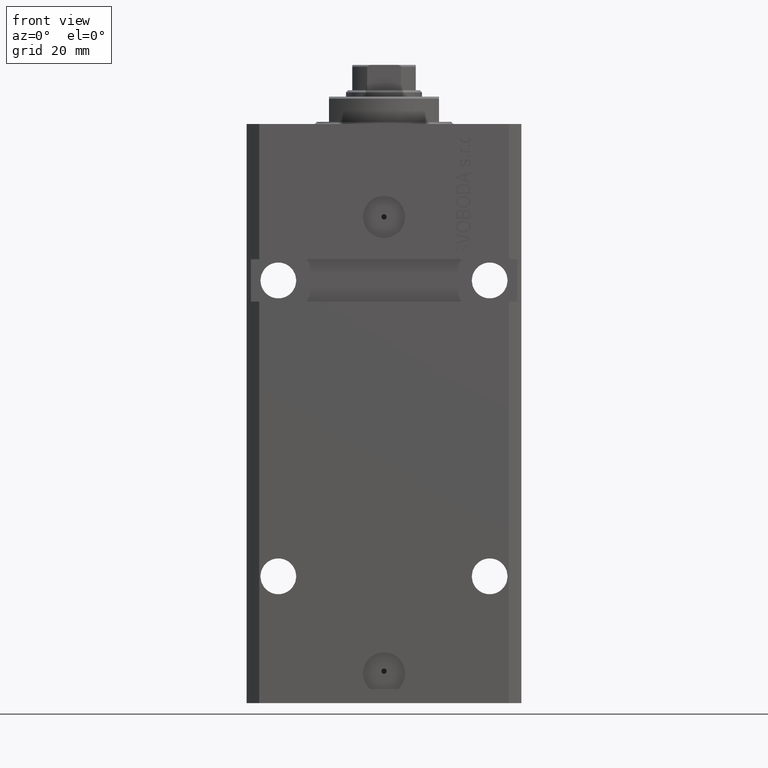
[diagram: clean part render]
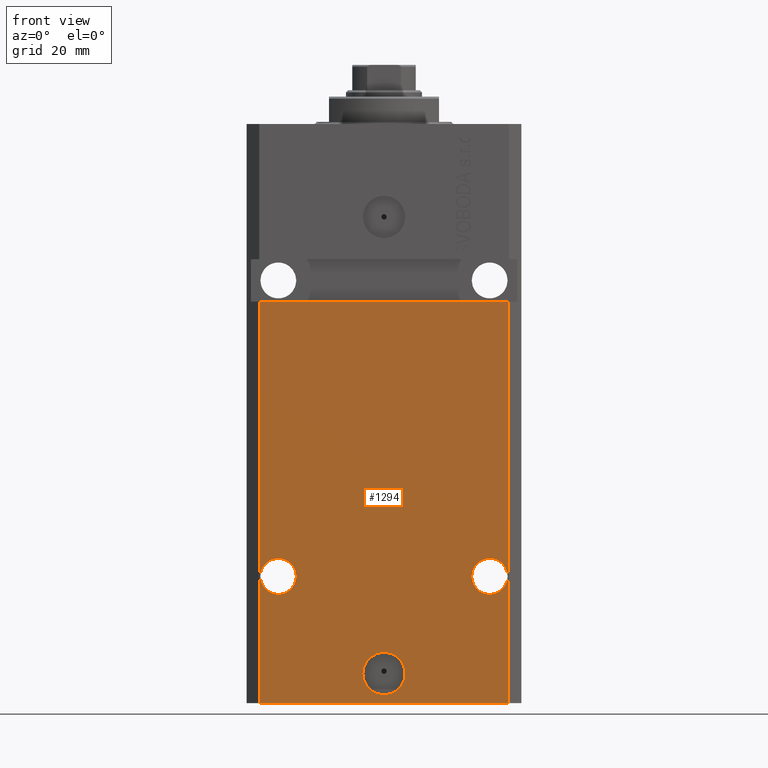
[diagram: same view with one face highlighted and labeled with its STEP entity id]
A machine part, front view. The second image highlights one B-rep face of the part: STEP entity #1294.
In plain terms, the highlighted planar face has unit normal (0, -1, 0).
Its self-contained STEP definition (entity closure, byte-faithful):
#563 = CARTESIAN_POINT ( 'NONE',  ( -29.49999999999650413, -22.49999999999949907, -137.0000000000000000 ) ) ;
#709 = ORIENTED_EDGE ( 'NONE', *, *, #30894, .F. ) ;
#772 = AXIS2_PLACEMENT_3D ( 'NONE', #40109, #24463, #17959 ) ;
#794 = CARTESIAN_POINT ( 'NONE',  ( 29.49999999999650058, -22.49999999999949196, -41.99999999999998579 ) ) ;
#878 = EDGE_LOOP ( 'NONE', ( #13685, #11842 ) ) ;
#1294 = ADVANCED_FACE ( 'NONE', ( #38392, #5846, #20100, #12629 ), #20328, .T. ) ;
#1547 = CARTESIAN_POINT ( 'NONE',  ( -5.000000000000003553, -22.49999999999949551, -130.0000000000000000 ) ) ;
#1657 = DIRECTION ( 'NONE',  ( 1.176083712526788232E-16, -1.000000000000000000, 0.000000000000000000 ) ) ;
#1939 = VECTOR ( 'NONE', #4439, 1000.000000000000000 ) ;
#1985 = EDGE_CURVE ( 'NONE', #36672, #47180, #29821, .T. ) ;
#3663 = VERTEX_POINT ( 'NONE', #15588 ) ;
#3960 = LINE ( 'NONE', #563, #1939 ) ;
#4177 = CARTESIAN_POINT ( 'NONE',  ( 20.75000000001096012, -22.49999999999949196, -107.0000000000000000 ) ) ;
#4439 = DIRECTION ( 'NONE',  ( 0.000000000000000000, 0.000000000000000000, 1.000000000000000000 ) ) ;
#4982 = CARTESIAN_POINT ( 'NONE',  ( 5.000000000000008882, -22.49999999999949551, -130.0000000000000000 ) ) ;
#5269 = CIRCLE ( 'NONE', #43735, 4.249999999989050536 ) ;
#5281 = CARTESIAN_POINT ( 'NONE',  ( 25.00000000000001066, -22.49999999999949196, -107.0000000000000000 ) ) ;
#5389 = CIRCLE ( 'NONE', #772, 5.000000000000006217 ) ;
#5846 = FACE_BOUND ( 'NONE', #11536, .T. ) ;
#6066 = EDGE_CURVE ( 'NONE', #31762, #12557, #16029, .T. ) ;
#6820 = VERTEX_POINT ( 'NONE', #7582 ) ;
#6883 = EDGE_CURVE ( 'NONE', #3663, #24716, #5269, .T. ) ;
#7391 = CARTESIAN_POINT ( 'NONE',  ( -32.49999999999650413, -22.49999999999949907, -41.99999999999999289 ) ) ;
#7582 = CARTESIAN_POINT ( 'NONE',  ( 29.49999999999650413, -22.49999999999949196, -137.0000000000000000 ) ) ;
#7701 = CARTESIAN_POINT ( 'NONE',  ( -29.49999999999650413, -22.49999999999949907, -41.99999999999999289 ) ) ;
#8059 = EDGE_CURVE ( 'NONE', #43306, #19289, #14531, .T. ) ;
#8542 = DIRECTION ( 'NONE',  ( 1.000000000000000000, 0.000000000000000000, 0.000000000000000000 ) ) ;
#8730 = DIRECTION ( 'NONE',  ( -1.000000000000000000, 0.000000000000000000, 0.000000000000000000 ) ) ;
#9423 = DIRECTION ( 'NONE',  ( 1.176083712526788232E-16, -1.000000000000000000, 0.000000000000000000 ) ) ;
#10056 = VERTEX_POINT ( 'NONE', #42397 ) ;
#10617 = ORIENTED_EDGE ( 'NONE', *, *, #16434, .T. ) ;
#11536 = EDGE_LOOP ( 'NONE', ( #36813, #22162 ) ) ;
#11842 = ORIENTED_EDGE ( 'NONE', *, *, #38777, .F. ) ;
#12557 = VERTEX_POINT ( 'NONE', #1547 ) ;
#12629 = FACE_OUTER_BOUND ( 'NONE', #35837, .T. ) ;
#13685 = ORIENTED_EDGE ( 'NONE', *, *, #6066, .F. ) ;
#14162 = DIRECTION ( 'NONE',  ( 1.000000000000000000, 1.176083712526788232E-16, 0.000000000000000000 ) ) ;
#14471 = VECTOR ( 'NONE', #36325, 1000.000000000000000 ) ;
#14531 = CIRCLE ( 'NONE', #29927, 4.249999999989050536 ) ;
#15278 = DIRECTION ( 'NONE',  ( 1.176083712526788232E-16, -1.000000000000000000, 0.000000000000000000 ) ) ;
#15588 = CARTESIAN_POINT ( 'NONE',  ( 29.24999999998906119, -22.49999999999949196, -107.0000000000000000 ) ) ;
#15606 = CIRCLE ( 'NONE', #16395, 4.249999999989050536 ) ;
#16024 = DIRECTION ( 'NONE',  ( 1.176083712526788232E-16, -1.000000000000000000, 0.000000000000000000 ) ) ;
#16029 = CIRCLE ( 'NONE', #34531, 5.000000000000006217 ) ;
#16382 = DIRECTION ( 'NONE',  ( 1.000000000000000000, 0.000000000000000000, 0.000000000000000000 ) ) ;
#16383 = CARTESIAN_POINT ( 'NONE',  ( -29.24999999998905409, -22.49999999999949907, -107.0000000000000000 ) ) ;
#16395 = AXIS2_PLACEMENT_3D ( 'NONE', #29980, #15278, #19621 ) ;
#16434 = EDGE_CURVE ( 'NONE', #10056, #6820, #39688, .T. ) ;
#17527 = AXIS2_PLACEMENT_3D ( 'NONE', #31634, #42013, #41550 ) ;
#17959 = DIRECTION ( 'NONE',  ( 1.000000000000000000, 0.000000000000000000, 0.000000000000000000 ) ) ;
#19289 = VERTEX_POINT ( 'NONE', #16383 ) ;
#19621 = DIRECTION ( 'NONE',  ( -1.000000000000000000, 0.000000000000000000, 0.000000000000000000 ) ) ;
#20100 = FACE_BOUND ( 'NONE', #20663, .T. ) ;
#20328 = PLANE ( 'NONE',  #17527 ) ;
#20663 = EDGE_LOOP ( 'NONE', ( #31760, #44913 ) ) ;
#20765 = AXIS2_PLACEMENT_3D ( 'NONE', #5281, #1657, #16382 ) ;
#20836 = EDGE_CURVE ( 'NONE', #19289, #43306, #15606, .T. ) ;
#22162 = ORIENTED_EDGE ( 'NONE', *, *, #37717, .F. ) ;
#23655 = CARTESIAN_POINT ( 'NONE',  ( -25.00000000000000355, -22.49999999999949907, -107.0000000000000000 ) ) ;
#23914 = VECTOR ( 'NONE', #14162, 1000.000000000000000 ) ;
#24463 = DIRECTION ( 'NONE',  ( 1.176083712526788232E-16, -1.000000000000000000, 0.000000000000000000 ) ) ;
#24716 = VERTEX_POINT ( 'NONE', #4177 ) ;
#25977 = DIRECTION ( 'NONE',  ( 0.000000000000000000, 0.000000000000000000, 1.000000000000000000 ) ) ;
#27201 = ORIENTED_EDGE ( 'NONE', *, *, #41950, .T. ) ;
#28257 = DIRECTION ( 'NONE',  ( 1.000000000000000000, 0.000000000000000000, 0.000000000000000000 ) ) ;
#29821 = LINE ( 'NONE', #7391, #14471 ) ;
#29927 = AXIS2_PLACEMENT_3D ( 'NONE', #23655, #9423, #8730 ) ;
#29980 = CARTESIAN_POINT ( 'NONE',  ( -25.00000000000000355, -22.49999999999949907, -107.0000000000000000 ) ) ;
#30256 = CARTESIAN_POINT ( 'NONE',  ( 25.00000000000001066, -22.49999999999949196, -107.0000000000000000 ) ) ;
#30894 = EDGE_CURVE ( 'NONE', #10056, #36672, #3960, .T. ) ;
#31634 = CARTESIAN_POINT ( 'NONE',  ( -29.49999999999650413, -22.49999999999949907, -137.0000000000000000 ) ) ;
#31760 = ORIENTED_EDGE ( 'NONE', *, *, #8059, .F. ) ;
#31762 = VERTEX_POINT ( 'NONE', #4982 ) ;
#32739 = LINE ( 'NONE', #47446, #40115 ) ;
#34531 = AXIS2_PLACEMENT_3D ( 'NONE', #42246, #42952, #28257 ) ;
#34605 = CIRCLE ( 'NONE', #20765, 4.249999999989050536 ) ;
#35837 = EDGE_LOOP ( 'NONE', ( #46517, #709, #10617, #27201 ) ) ;
#36325 = DIRECTION ( 'NONE',  ( 1.000000000000000000, 1.067522139062765303E-16, 1.067522139062765303E-16 ) ) ;
#36672 = VERTEX_POINT ( 'NONE', #7701 ) ;
#36813 = ORIENTED_EDGE ( 'NONE', *, *, #6883, .F. ) ;
#37717 = EDGE_CURVE ( 'NONE', #24716, #3663, #34605, .T. ) ;
#38392 = FACE_BOUND ( 'NONE', #878, .T. ) ;
#38777 = EDGE_CURVE ( 'NONE', #12557, #31762, #5389, .T. ) ;
#39608 = CARTESIAN_POINT ( 'NONE',  ( -20.75000000001095302, -22.49999999999949907, -107.0000000000000000 ) ) ;
#39688 = LINE ( 'NONE', #47188, #23914 ) ;
#40109 = CARTESIAN_POINT ( 'NONE',  ( 2.646188353185214061E-15, -22.49999999999949551, -130.0000000000000000 ) ) ;
#40115 = VECTOR ( 'NONE', #25977, 1000.000000000000000 ) ;
#41550 = DIRECTION ( 'NONE',  ( 1.000000000000000000, 1.176083712526788232E-16, 0.000000000000000000 ) ) ;
#41950 = EDGE_CURVE ( 'NONE', #6820, #47180, #32739, .T. ) ;
#42013 = DIRECTION ( 'NONE',  ( 1.176083712526788232E-16, -1.000000000000000000, 0.000000000000000000 ) ) ;
#42246 = CARTESIAN_POINT ( 'NONE',  ( 2.646188353185214061E-15, -22.49999999999949551, -130.0000000000000000 ) ) ;
#42397 = CARTESIAN_POINT ( 'NONE',  ( -29.49999999999650413, -22.49999999999949907, -137.0000000000000000 ) ) ;
#42952 = DIRECTION ( 'NONE',  ( 1.176083712526788232E-16, -1.000000000000000000, 0.000000000000000000 ) ) ;
#43306 = VERTEX_POINT ( 'NONE', #39608 ) ;
#43735 = AXIS2_PLACEMENT_3D ( 'NONE', #30256, #16024, #8542 ) ;
#44913 = ORIENTED_EDGE ( 'NONE', *, *, #20836, .F. ) ;
#46517 = ORIENTED_EDGE ( 'NONE', *, *, #1985, .F. ) ;
#47180 = VERTEX_POINT ( 'NONE', #794 ) ;
#47188 = CARTESIAN_POINT ( 'NONE',  ( -29.49999999999650413, -22.49999999999949907, -137.0000000000000000 ) ) ;
#47446 = CARTESIAN_POINT ( 'NONE',  ( 29.49999999999650413, -22.49999999999949196, -137.0000000000000000 ) ) ;